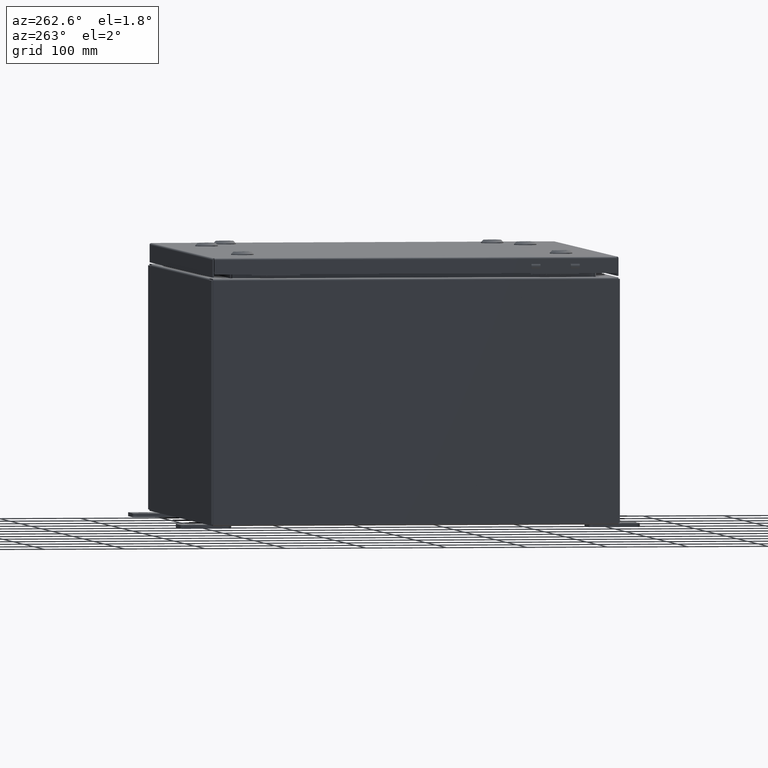
[diagram: clean part render]
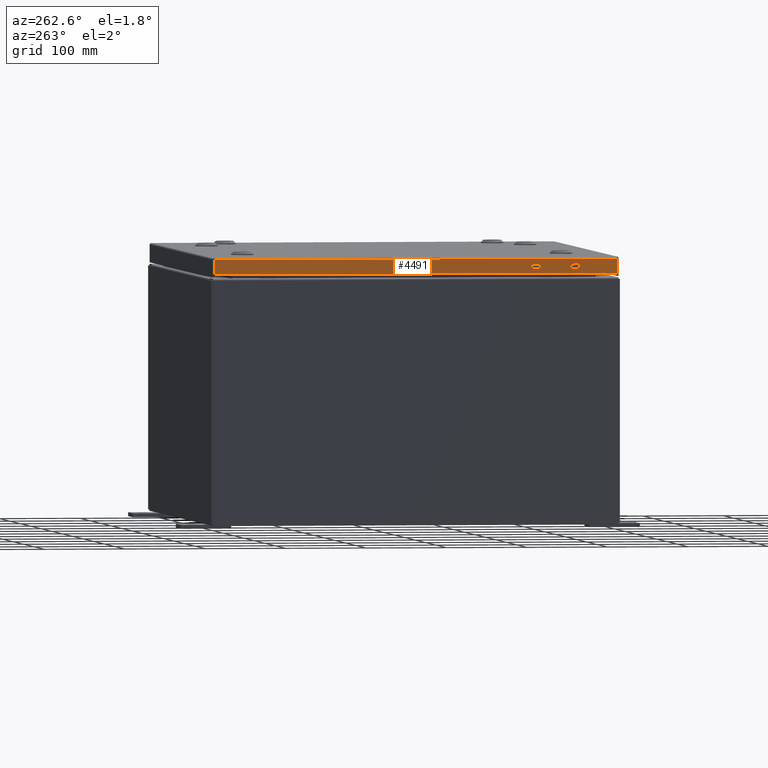
[diagram: same view with one face highlighted and labeled with its STEP entity id]
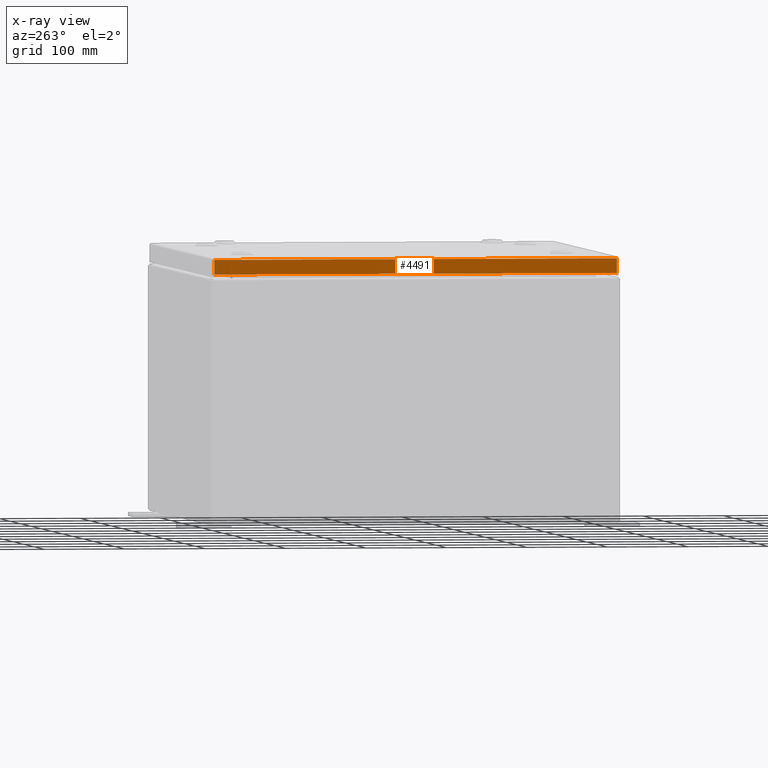
[diagram: x-ray of the same camera — body ghosted, the highlighted face saturated]
A machine part, auxiliary view. The second image highlights one B-rep face of the part: STEP entity #4491.
The next image is the same camera in x-ray: the body ghosted, the highlighted face saturated — about 0% of this face is hidden behind the body in this view.
In plain terms, the highlighted planar face has unit normal (1, 0, -0).
Its self-contained STEP definition (entity closure, byte-faithful):
#3319 = LINE ( 'NONE', #54248, #53893 ) ;
#4121 = VECTOR ( 'NONE', #50529, 39.37007874015748100 ) ;
#4491 = ADVANCED_FACE ( 'NONE', ( #44832 ), #48346, .F. ) ;
#6148 = EDGE_CURVE ( 'NONE', #44520, #41999, #3319, .T. ) ;
#8372 = AXIS2_PLACEMENT_3D ( 'NONE', #58218, #14887, #49212 ) ;
#9008 = ORIENTED_EDGE ( 'NONE', *, *, #17674, .F. ) ;
#9069 = CARTESIAN_POINT ( 'NONE',  ( -11.93749999999999800, -9.937500000000001800, -0.08770000000000004200 ) ) ;
#12096 = VECTOR ( 'NONE', #37463, 39.37007874015748100 ) ;
#12683 = EDGE_CURVE ( 'NONE', #26685, #17622, #43229, .T. ) ;
#14887 = DIRECTION ( 'NONE',  ( 1.000000000000000000, 1.099611771034675400E-016, -3.034122441942816500E-015 ) ) ;
#16025 = EDGE_LOOP ( 'NONE', ( #9008, #45811, #51196, #40918 ) ) ;
#17622 = VERTEX_POINT ( 'NONE', #18478 ) ;
#17674 = EDGE_CURVE ( 'NONE', #44520, #26685, #36092, .T. ) ;
#18478 = CARTESIAN_POINT ( 'NONE',  ( -11.93750000000000000, -9.848657864376265900, -0.7949999999999996000 ) ) ;
#19734 = DIRECTION ( 'NONE',  ( -3.034122441942817300E-015, 6.982962677686267500E-015, -1.000000000000000000 ) ) ;
#19943 = VECTOR ( 'NONE', #43364, 39.37007874015748100 ) ;
#25126 = LINE ( 'NONE', #56341, #12096 ) ;
#26685 = VERTEX_POINT ( 'NONE', #32226 ) ;
#28258 = EDGE_CURVE ( 'NONE', #17622, #41999, #25126, .T. ) ;
#32226 = CARTESIAN_POINT ( 'NONE',  ( -11.93749999999999800, -9.848657864376269400, -0.08769999999999897300 ) ) ;
#35926 = CARTESIAN_POINT ( 'NONE',  ( -11.93750000000000000, 9.848657864376269400, -0.08769999999999787700 ) ) ;
#36092 = LINE ( 'NONE', #9069, #19943 ) ;
#37463 = DIRECTION ( 'NONE',  ( -1.099611771034671800E-016, 1.000000000000000000, 1.237063242414006000E-016 ) ) ;
#40644 = CARTESIAN_POINT ( 'NONE',  ( -11.93749999999999800, -9.848657864376271200, -0.07469999999999976700 ) ) ;
#40918 = ORIENTED_EDGE ( 'NONE', *, *, #12683, .F. ) ;
#41999 = VERTEX_POINT ( 'NONE', #43493 ) ;
#43229 = LINE ( 'NONE', #40644, #4121 ) ;
#43364 = DIRECTION ( 'NONE',  ( 1.099611771034672200E-016, -1.000000000000000000, -1.099611771034675300E-016 ) ) ;
#43493 = CARTESIAN_POINT ( 'NONE',  ( -11.93750000000000000, 9.848657864376271200, -0.7949999999999972600 ) ) ;
#44520 = VERTEX_POINT ( 'NONE', #35926 ) ;
#44832 = FACE_OUTER_BOUND ( 'NONE', #16025, .T. ) ;
#45811 = ORIENTED_EDGE ( 'NONE', *, *, #6148, .T. ) ;
#48346 = PLANE ( 'NONE',  #8372 ) ;
#49212 = DIRECTION ( 'NONE',  ( -3.034122441942816500E-015, 0.0000000000000000000, -1.000000000000000000 ) ) ;
#50529 = DIRECTION ( 'NONE',  ( -3.034122441942817300E-015, 6.982962677686267500E-015, -1.000000000000000000 ) ) ;
#51196 = ORIENTED_EDGE ( 'NONE', *, *, #28258, .F. ) ;
#53893 = VECTOR ( 'NONE', #19734, 39.37007874015748100 ) ;
#54248 = CARTESIAN_POINT ( 'NONE',  ( -11.93749999999999800, 9.848657864376265900, 1.052534605989447800E-013 ) ) ;
#56341 = CARTESIAN_POINT ( 'NONE',  ( -11.93750000000000000, -9.937500000000001800, -0.7949999999999997100 ) ) ;
#58218 = CARTESIAN_POINT ( 'NONE',  ( -11.93749999999999800, -1.312661551672643500E-015, 3.648065030670394700E-014 ) ) ;